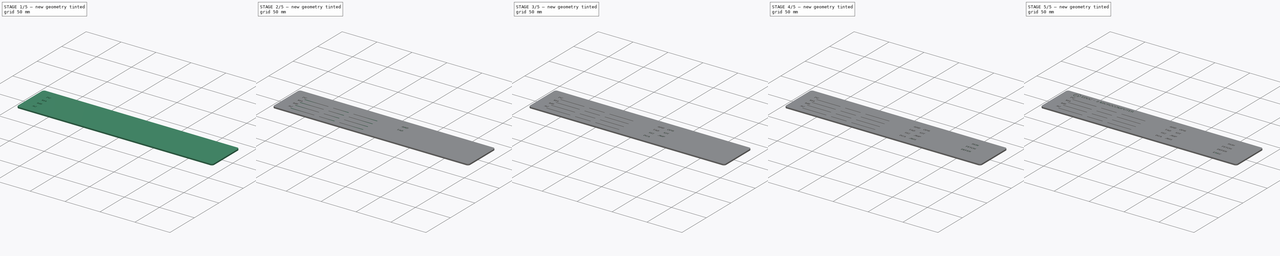
[diagram: build sequence overview — one tinted view per stage of 5, left to right]
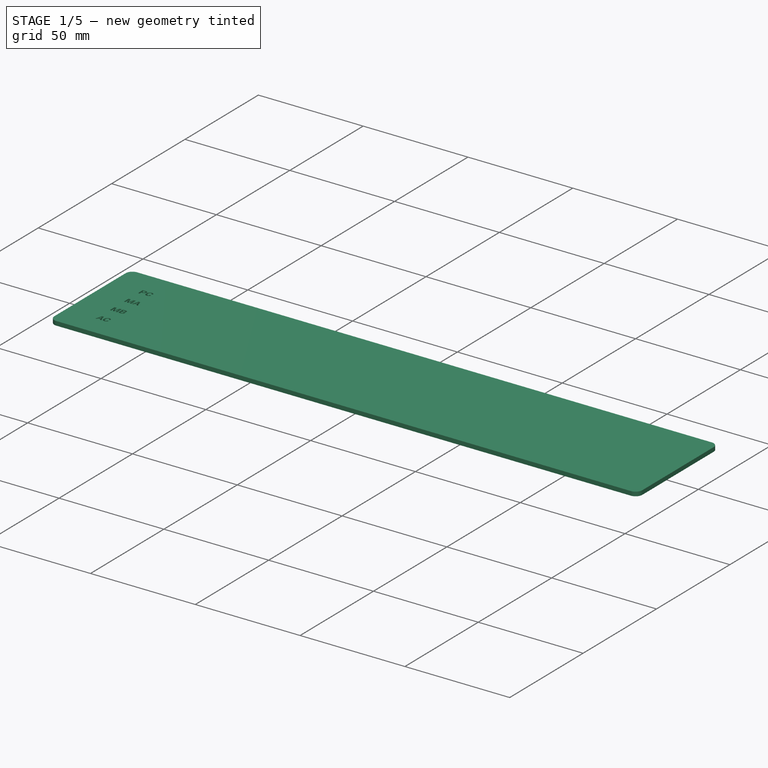
[diagram: stage 1 of 5 — iso view after this stage's code; geometry added in this stage tinted green]
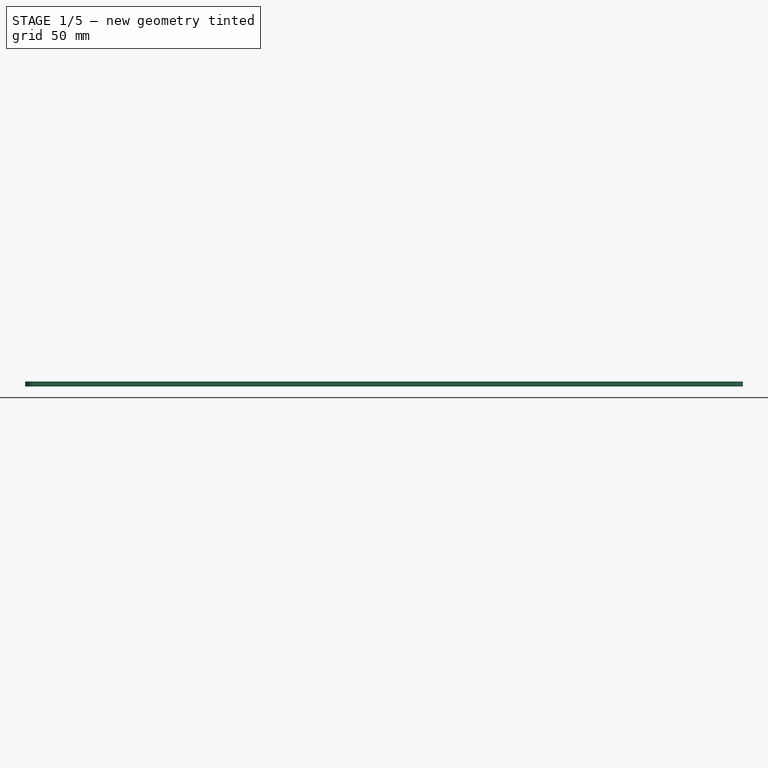
[diagram: stage 1 of 5 — front view after this stage's code; geometry added in this stage tinted green]
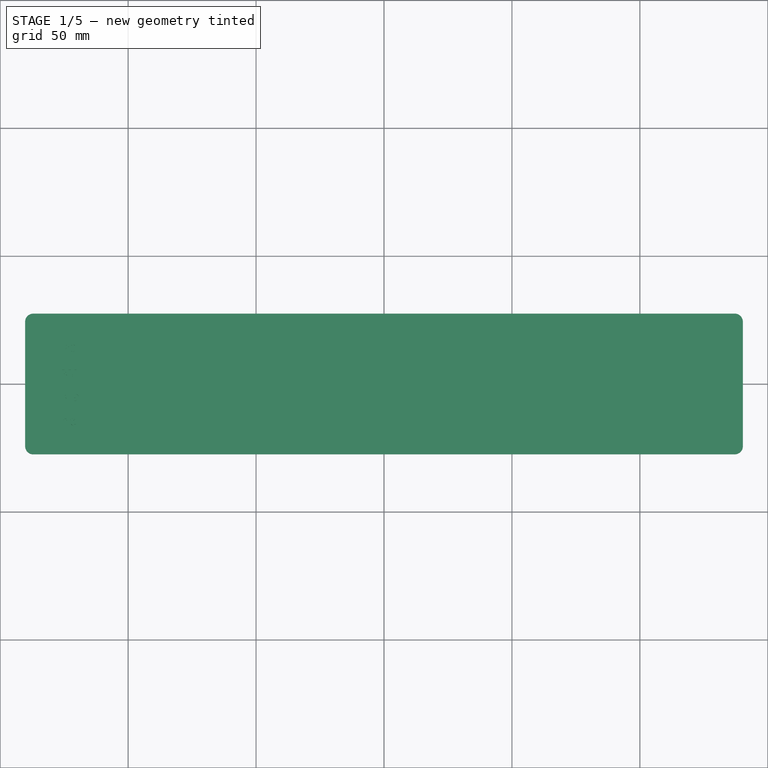
[diagram: stage 1 of 5 — top view after this stage's code; geometry added in this stage tinted green]
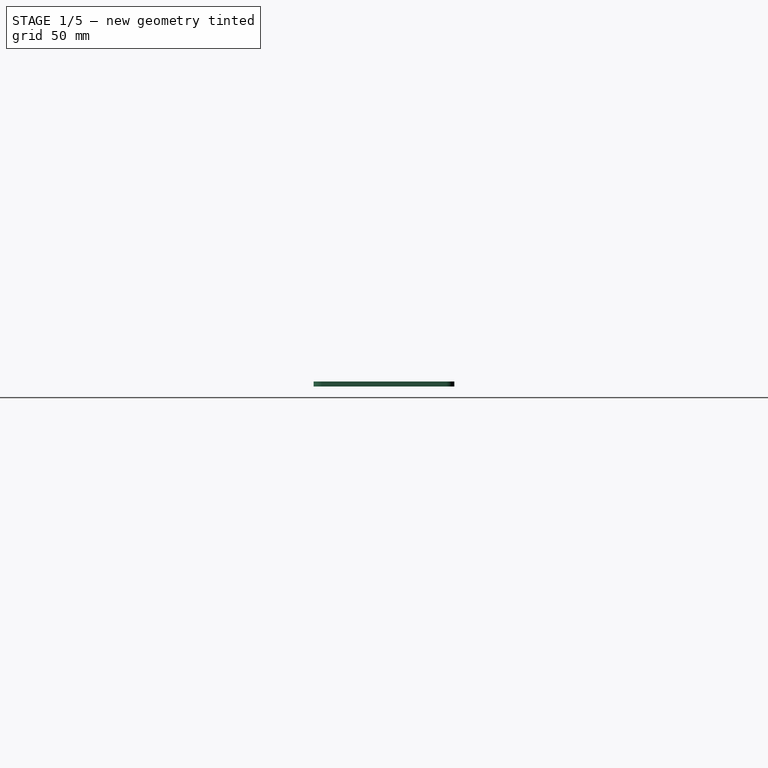
[diagram: stage 1 of 5 — right view after this stage's code; geometry added in this stage tinted green]
FCSTD DOCUMENT  (FreeCAD 0.21R33771 (Git))
Label: perspex window
License: All rights reserved
LicenseURL: http://en.wikipedia.org/wiki/All_rights_reserved
objects: PartDesign::Pocket×21, Part::Part2DObjectPython×19, Sketcher::SketchObject×4, PartDesign::Pad×1, PartDesign::LinearPattern×1, PartDesign::Body×1
note: 69 computed .brp shape members not serialized (recipe doc carries the construction recipe); baked Part::Feature solids carry a one-line shape summary decoded from their .brp

FEATURE [Sketcher::SketchObject] Sketch
  FullyConstrained = true
  MapMode = 5
  Support = -> [XY_Plane]
  sketch-geometry (10):
    g0: ArcOfCircle CenterX=-137.05 CenterY=24.3 CenterZ=0 NormalX=0 NormalY=0 NormalZ=1 AngleXU=0 Radius=3.2 StartAngle=1.5708 EndAngle=3.14159
    g1: LineSegment StartX=-137.05 StartY=27.5 StartZ=0 EndX=137.05 EndY=27.5 EndZ=0
    g2: ArcOfCircle CenterX=137.05 CenterY=24.3 CenterZ=0 NormalX=0 NormalY=0 NormalZ=1 AngleXU=0 Radius=3.2 StartAngle=5e-16 EndAngle=1.5708
    g3: LineSegment StartX=140.25 StartY=24.3 StartZ=0 EndX=140.25 EndY=-24.3 EndZ=0
    g4: ArcOfCircle CenterX=137.05 CenterY=-24.3 CenterZ=0 NormalX=0 NormalY=0 NormalZ=1 AngleXU=0 Radius=3.2 StartAngle=4.71239 EndAngle=6.28319
    g5: LineSegment StartX=137.05 StartY=-27.5 StartZ=0 EndX=-137.05 EndY=-27.5 EndZ=0
    g6: ArcOfCircle CenterX=-137.05 CenterY=-24.3 CenterZ=0 NormalX=0 NormalY=0 NormalZ=1 AngleXU=0 Radius=3.2 StartAngle=3.14159 EndAngle=4.71239
    g7: LineSegment StartX=-140.25 StartY=-24.3 StartZ=0 EndX=-140.25 EndY=24.3 EndZ=0
    g8: GeomPoint X=-140.25 Y=27.5 Z=0
    g9: GeomPoint X=140.25 Y=-27.5 Z=0
  constraints (23):
    c: Tangent(g0,g1) = 1.5708
    c: Tangent(g1,g2) = 1.5708
    c: Tangent(g2,g3) = 1.5708
    c: Tangent(g3,g4) = 1.5708
    c: Tangent(g4,g5) = 1.5708
    c: Tangent(g5,g6) = 1.5708
    c: Tangent(g6,g7) = 1.5708
    c: Tangent(g7,g0) = 1.5708
    c: Horizontal(g1)
    c: Horizontal(g5)
    c: Vertical(g3)
    c: Vertical(g7)
    c: Equal(g0,g2)
    c: Equal(g2,g4)
    c: Equal(g4,g6)
    c: PointOnObject(g8,g1)
    c: PointOnObject(g8,g7)
    c: PointOnObject(g9,g3)
    c: PointOnObject(g9,g5)
    c: Radius(g0) = 3.2
    c: Symmetric(g2,g6,g-1)
    c: DistanceX(g0,g2) = 280.5
    c: DistanceY(g4,g1) = 55
FEATURE [PartDesign::Pad] Pad
  Direction = (0,0,1)
  Length = 2
  Length2 = 10
  Profile = -> Sketch
  ReferenceAxis = -> Sketch [N_Axis]
  Type = 0
FEATURE [Part::Part2DObjectPython] ShapeString  # Draft 2D object (typed FeaturePython)
  FontFile = <userpath>/Downloads/roboto/Roboto-Black.ttf
  MakeFace = true
  Placement = pos=(-126,12,2) rot=(0,0,1;0rad)
  Size = 4
  String = PC
  Tracking = 0
FEATURE [PartDesign::Pocket] Pocket  label="PC"
  BaseFeature = -> Pad
  Direction = (0,0,-1)
  Length = 1
  Length2 = 5
  Profile = -> ShapeString
  ReferenceAxis = -> ShapeString [N_Axis]
  Type = 0
FEATURE [Part::Part2DObjectPython] ShapeString001  # Draft 2D object (typed FeaturePython)
  FontFile = <userpath>/Downloads/roboto/Roboto-Black.ttf
  MakeFace = true
  Placement = pos=(-126,2.4,2) rot=(0,0,1;0rad)
  Size = 4
  String = MA
  Tracking = 0
FEATURE [Part::Part2DObjectPython] ShapeString002  # Draft 2D object (typed FeaturePython)
  FontFile = <userpath>/Downloads/roboto/Roboto-Black.ttf
  MakeFace = true
  Placement = pos=(-126,-7.2,2) rot=(0,0,1;0rad)
  Size = 4
  String = MB
  Tracking = 0
FEATURE [Part::Part2DObjectPython] ShapeString003  # Draft 2D object (typed FeaturePython)
  FontFile = <userpath>/Downloads/roboto/Roboto-Black.ttf
  MakeFace = true
  Placement = pos=(-126,-16.8,2) rot=(0,0,1;0rad)
  Size = 4
  String = AC
  Tracking = 0
FEATURE [PartDesign::Pocket] Pocket001  label="MA"
  BaseFeature = -> Pocket
  Direction = (0,0,-1)
  Length = 1
  Length2 = 5
  Profile = -> ShapeString001
  ReferenceAxis = -> ShapeString001 [N_Axis]
  Type = 0
FEATURE [PartDesign::Pocket] Pocket002  label="MB"
  BaseFeature = -> Pocket001
  Direction = (0,0,-1)
  Length = 1
  Length2 = 5
  Profile = -> ShapeString002
  ReferenceAxis = -> ShapeString002 [N_Axis]
  Type = 0
FEATURE [PartDesign::Pocket] Pocket003  label="AC"
  BaseFeature = -> Pocket002
  Direction = (0,0,-1)
  Length = 1
  Length2 = 5
  Profile = -> ShapeString003
  ReferenceAxis = -> ShapeString003 [N_Axis]
  Type = 0
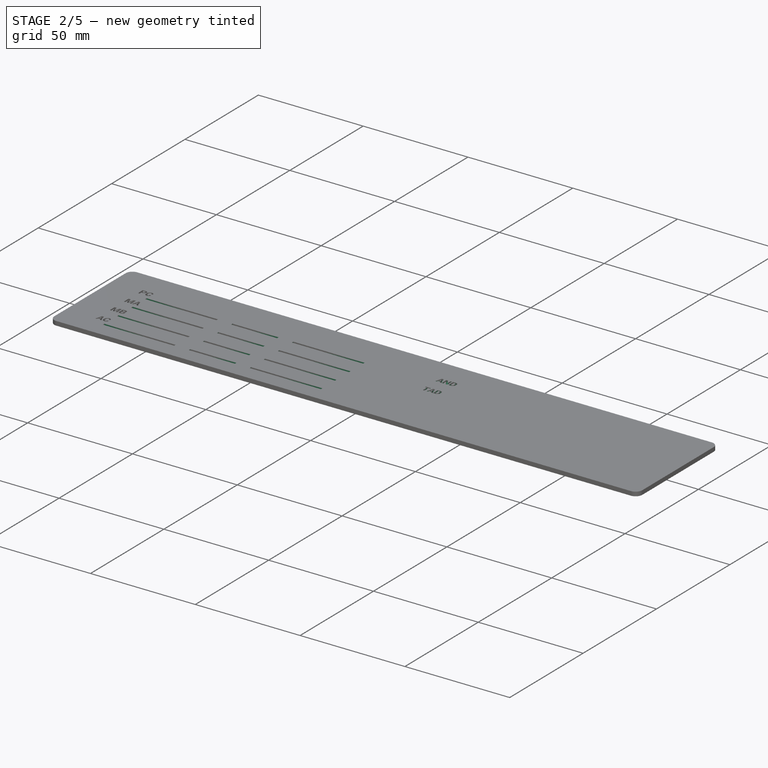
[diagram: stage 2 of 5 — iso view after this stage's code; geometry added in this stage tinted green]
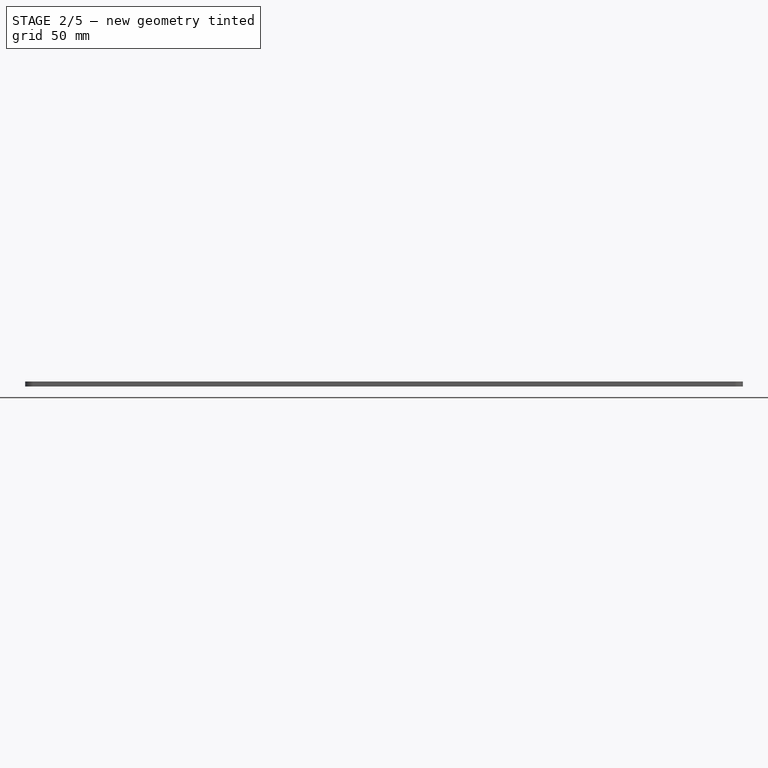
[diagram: stage 2 of 5 — front view after this stage's code; geometry added in this stage tinted green]
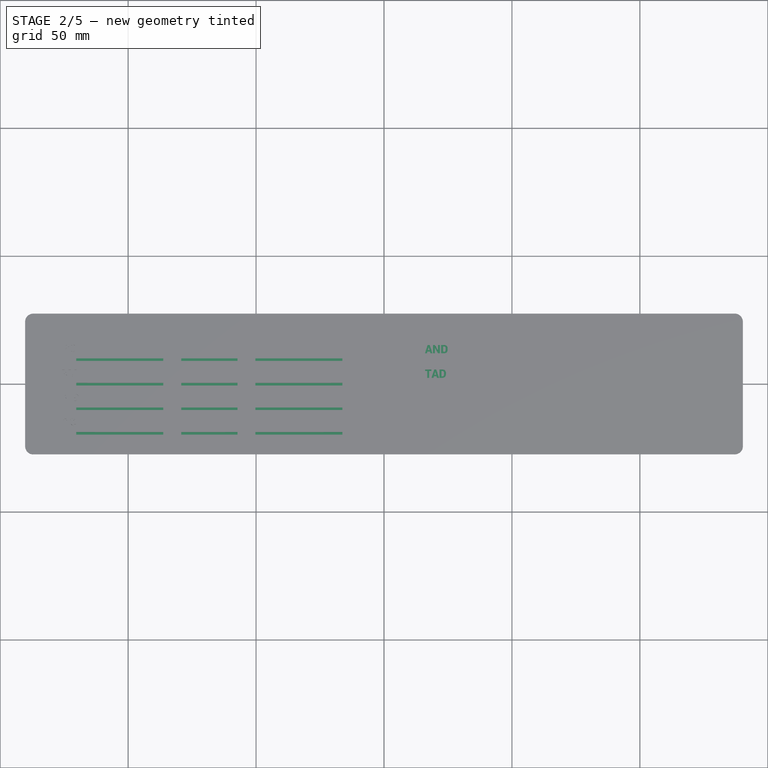
[diagram: stage 2 of 5 — top view after this stage's code; geometry added in this stage tinted green]
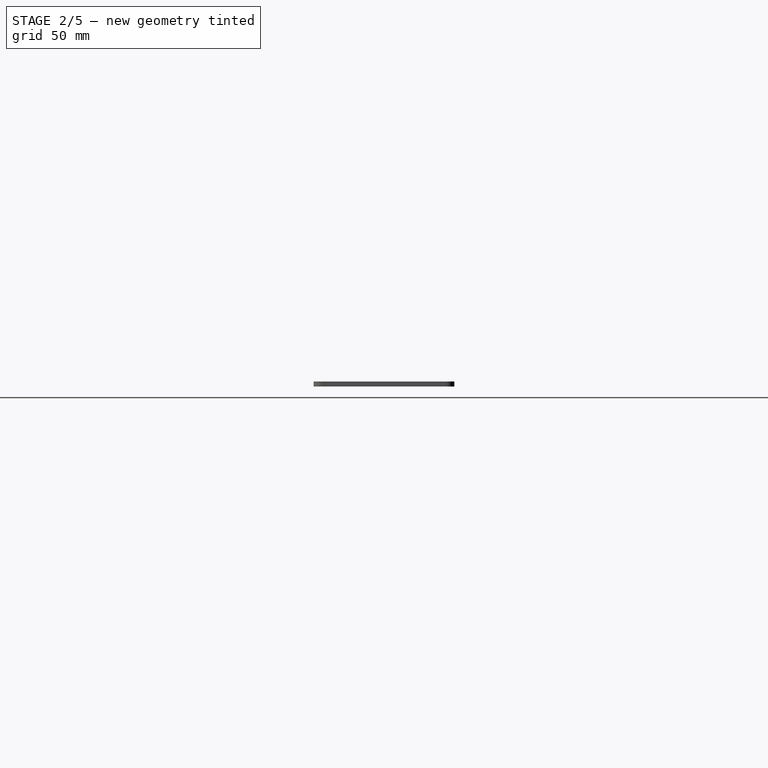
[diagram: stage 2 of 5 — right view after this stage's code; geometry added in this stage tinted green]
FEATURE [Sketcher::SketchObject] Sketch001
  FullyConstrained = true
  MapMode = 5
  Placement = pos=(0,0,2) rot=(0,0,1;0rad)
  Support = -> [Pocket003]
  sketch-geometry (12):
    g0: LineSegment StartX=-120.25 StartY=9 StartZ=0 EndX=-86.25 EndY=9 EndZ=0
    g1: LineSegment StartX=-86.25 StartY=9 StartZ=0 EndX=-86.25 EndY=10 EndZ=0
    g2: LineSegment StartX=-86.25 StartY=10 StartZ=0 EndX=-120.25 EndY=10 EndZ=0
    g3: LineSegment StartX=-120.25 StartY=10 StartZ=0 EndX=-120.25 EndY=9 EndZ=0
    g4: LineSegment StartX=-79.25 StartY=10 StartZ=0 EndX=-57.25 EndY=10 EndZ=0
    g5: LineSegment StartX=-57.25 StartY=10 StartZ=0 EndX=-57.25 EndY=9 EndZ=0
    g6: LineSegment StartX=-57.25 StartY=9 StartZ=0 EndX=-79.25 EndY=9 EndZ=0
    g7: LineSegment StartX=-79.25 StartY=9 StartZ=0 EndX=-79.25 EndY=10 EndZ=0
    g8: LineSegment StartX=-50.25 StartY=10 StartZ=0 EndX=-16.25 EndY=10 EndZ=0
    g9: LineSegment StartX=-16.25 StartY=10 StartZ=0 EndX=-16.25 EndY=9 EndZ=0
    g10: LineSegment StartX=-16.25 StartY=9 StartZ=0 EndX=-50.25 EndY=9 EndZ=0
    g11: LineSegment StartX=-50.25 StartY=9 StartZ=0 EndX=-50.25 EndY=10 EndZ=0
  constraints (36):
    c: Coincident(g0,g1)
    c: Coincident(g1,g2)
    c: Coincident(g2,g3)
    c: Coincident(g3,g0)
    c: Horizontal(g0)
    c: Horizontal(g2)
    c: Vertical(g1)
    c: Vertical(g3)
    c: DistanceY(g-1,g0) = 9
    c: DistanceY(g3,g3) = 1
    c: DistanceX(g2,g2) = 34
    c: DistanceX(g0,g-1) = 120.25
    c: Coincident(g4,g5)
    c: Coincident(g5,g6)
    c: Coincident(g6,g7)
    c: Coincident(g7,g4)
    c: Horizontal(g4)
    c: Horizontal(g6)
    c: Vertical(g5)
    c: Vertical(g7)
    c: Coincident(g8,g9)
    c: Coincident(g9,g10)
    c: Coincident(g10,g11)
    c: Coincident(g11,g8)
    c: Horizontal(g8)
    c: Horizontal(g10)
    c: Vertical(g9)
    c: Vertical(g11)
    c: Horizontal(g0,g6)
    c: Horizontal(g6,g10)
    c: Horizontal(g4,g1)
    c: Horizontal(g1,g8)
    c: Equal(g8,g2)
    c: DistanceX(g0,g9) = 104
    c: DistanceX(g4,g4) = 22
    c: DistanceX(g1,g4) = 7
FEATURE [PartDesign::Pocket] Pocket004  label="LED Underlines"
  BaseFeature = -> Pocket003
  Direction = (0,0,-1)
  Length = 1
  Length2 = 5
  Profile = -> Sketch001
  ReferenceAxis = -> Sketch001 [N_Axis]
  Type = 0
FEATURE [PartDesign::LinearPattern] LinearPattern
  BaseFeature = -> Pocket004
  Direction = -> Sketch001 [V_Axis]
  Length = 28.8
  Occurrences = 4
  Originals = -> [Pocket004]
  Reversed = true
FEATURE [Part::Part2DObjectPython] ShapeString004  label="AND"  # Draft 2D object (typed FeaturePython)
  FontFile = <userpath>/Downloads/roboto/Roboto-Black.ttf
  MakeFace = true
  Placement = pos=(16,12,2) rot=(0,0,1;0rad)
  Size = 4
  String = AND
  Tracking = 0
FEATURE [Part::Part2DObjectPython] ShapeString005  label="TAD"  # Draft 2D object (typed FeaturePython)
  FontFile = <userpath>/Downloads/roboto/Roboto-Black.ttf
  MakeFace = true
  Placement = pos=(16,2.4,2) rot=(0,0,1;0rad)
  Size = 4
  String = TAD
  Tracking = 0
FEATURE [Part::Part2DObjectPython] ShapeString006  label="ISZ"  # Draft 2D object (typed FeaturePython)
  FontFile = <userpath>/Downloads/roboto/Roboto-Black.ttf
  MakeFace = true
  Placement = pos=(17,-7.2,2) rot=(0,0,1;0rad)
  Size = 4
  String = ISZ
  Tracking = 0
FEATURE [Part::Part2DObjectPython] ShapeString007  label="DCA"  # Draft 2D object (typed FeaturePython)
  FontFile = <userpath>/Downloads/roboto/Roboto-Black.ttf
  MakeFace = true
  Placement = pos=(16,-16.8,2) rot=(0,0,1;0rad)
  Size = 4
  String = DCA
  Tracking = 0
FEATURE [Part::Part2DObjectPython] ShapeString008  label="OPR"  # Draft 2D object (typed FeaturePython)
  FontFile = <userpath>/Downloads/roboto/Roboto-Black.ttf
  MakeFace = true
  Placement = pos=(29.8,12,2) rot=(0,0,1;0rad)
  Size = 4
  String = OPR
  Tracking = 0
FEATURE [Part::Part2DObjectPython] ShapeString009  label="IOT"  # Draft 2D object (typed FeaturePython)
  FontFile = <userpath>/Downloads/roboto/Roboto-Black.ttf
  MakeFace = true
  Placement = pos=(31.3,2.4,2) rot=(0,0,1;0rad)
  Size = 4
  String = IOT
  Tracking = 0
FEATURE [Part::Part2DObjectPython] ShapeString010  label="JMP"  # Draft 2D object (typed FeaturePython)
  FontFile = <userpath>/Downloads/roboto/Roboto-Black.ttf
  MakeFace = true
  Placement = pos=(29.8,-7.2,2) rot=(0,0,1;0rad)
  Size = 4
  String = JMP
  Tracking = 0
FEATURE [Part::Part2DObjectPython] ShapeString011  label="JMS"  # Draft 2D object (typed FeaturePython)
  FontFile = <userpath>/Downloads/roboto/Roboto-Black.ttf
  MakeFace = true
  Placement = pos=(29.8,-16.8,2) rot=(0,0,1;0rad)
  Size = 4
  String = JMS
  Tracking = 0
FEATURE [Part::Part2DObjectPython] ShapeString012  label="RUN"  # Draft 2D object (typed FeaturePython)
  FontFile = <userpath>/Downloads/roboto/Roboto-Black.ttf
  MakeFace = true
  Placement = pos=(99.3,12,2) rot=(0,0,1;0rad)
  Size = 4
  String = RUN
  Tracking = 0
FEATURE [Part::Part2DObjectPython] ShapeString013  label="FETCH"  # Draft 2D object (typed FeaturePython)
  FontFile = <userpath>/Downloads/roboto/Roboto-Black.ttf
  MakeFace = true
  Placement = pos=(97.3,2.4,2) rot=(0,0,1;0rad)
  Size = 4
  String = FETCH
  Tracking = 0
FEATURE [Part::Part2DObjectPython] ShapeString014  label="DEFER"  # Draft 2D object (typed FeaturePython)
  FontFile = <userpath>/Downloads/roboto/Roboto-Black.ttf
  MakeFace = true
  Placement = pos=(97.3,-7.2,2) rot=(0,0,1;0rad)
  Size = 4
  String = DEFER
  Tracking = 0
FEATURE [Part::Part2DObjectPython] ShapeString015  label="EXEC"  # Draft 2D object (typed FeaturePython)
  FontFile = <userpath>/Downloads/roboto/Roboto-Black.ttf
  MakeFace = true
  Placement = pos=(98.3,-16.8,2) rot=(0,0,1;0rad)
  Size = 4
  String = EXEC
  Tracking = 0
FEATURE [PartDesign::Pocket] Pocket005  label="AND001"
  BaseFeature = -> LinearPattern
  Direction = (0,0,-1)
  Length = 1
  Length2 = 5
  Profile = -> ShapeString004
  ReferenceAxis = -> ShapeString004 [N_Axis]
  Type = 0
FEATURE [PartDesign::Pocket] Pocket006  label="TAD001"
  BaseFeature = -> Pocket005
  Direction = (0,0,-1)
  Length = 1
  Length2 = 5
  Profile = -> ShapeString005
  ReferenceAxis = -> ShapeString005 [N_Axis]
  Type = 0
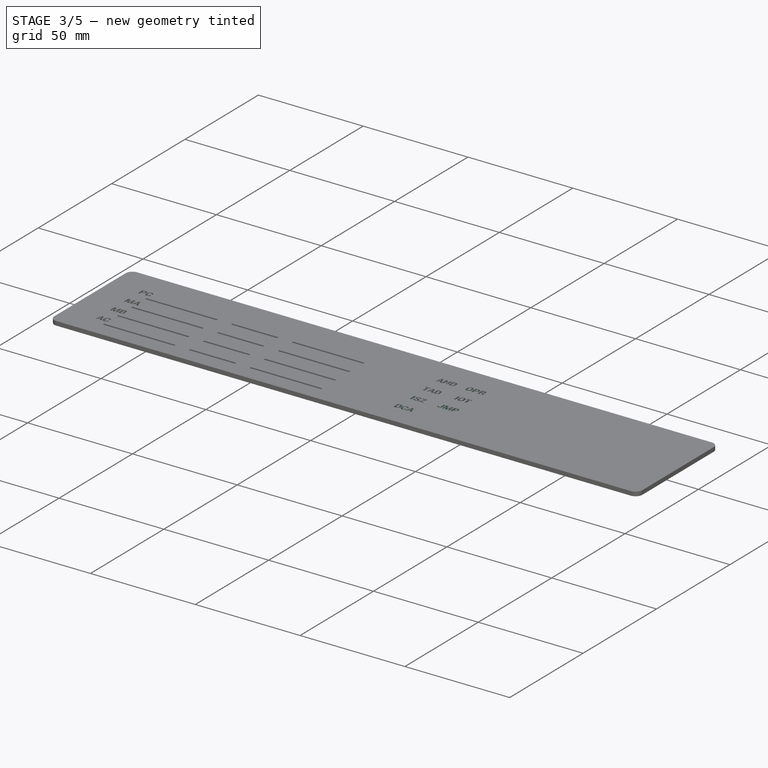
[diagram: stage 3 of 5 — iso view after this stage's code; geometry added in this stage tinted green]
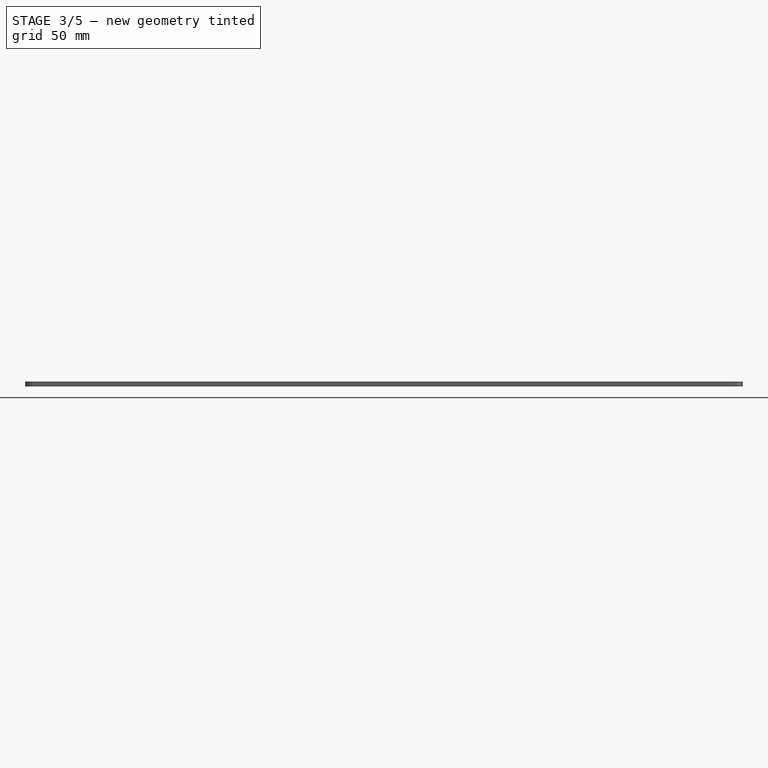
[diagram: stage 3 of 5 — front view after this stage's code; geometry added in this stage tinted green]
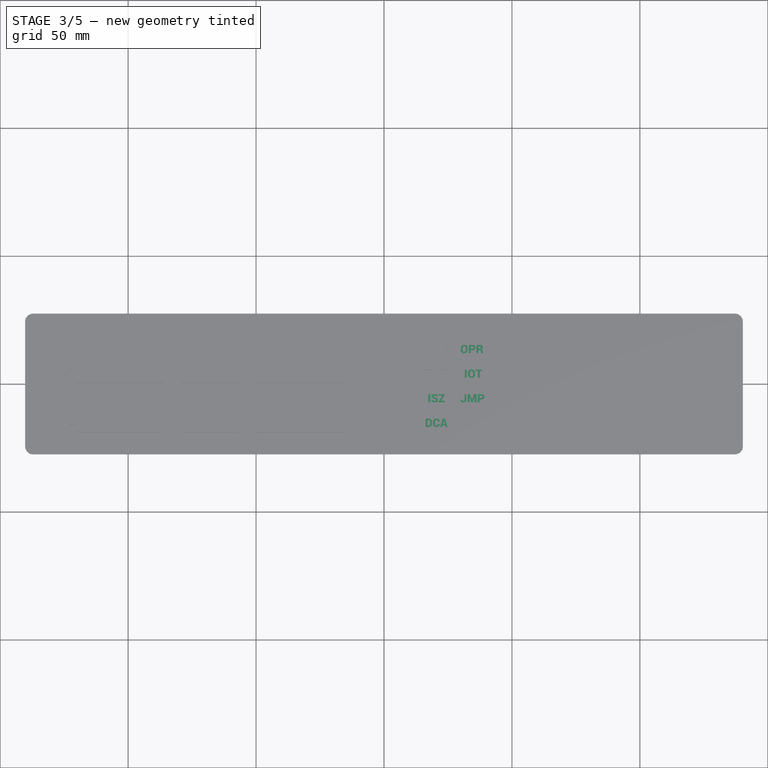
[diagram: stage 3 of 5 — top view after this stage's code; geometry added in this stage tinted green]
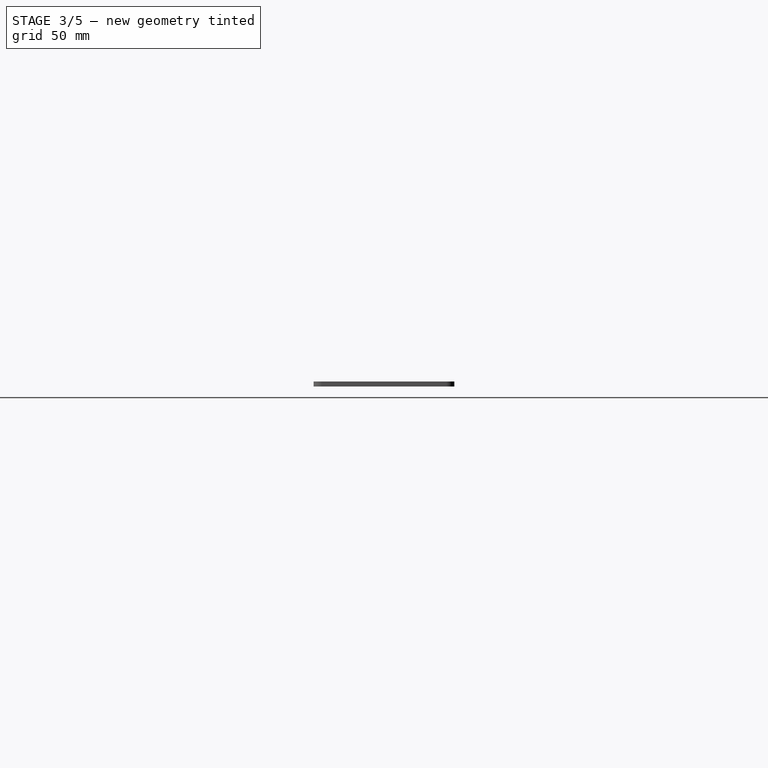
[diagram: stage 3 of 5 — right view after this stage's code; geometry added in this stage tinted green]
FEATURE [PartDesign::Pocket] Pocket007  label="ISZ001"
  BaseFeature = -> Pocket006
  Direction = (0,0,-1)
  Length = 1
  Length2 = 5
  Profile = -> ShapeString006
  ReferenceAxis = -> ShapeString006 [N_Axis]
  Type = 0
FEATURE [PartDesign::Pocket] Pocket008  label="DCA001"
  BaseFeature = -> Pocket007
  Direction = (0,0,-1)
  Length = 1
  Length2 = 5
  Profile = -> ShapeString007
  ReferenceAxis = -> ShapeString007 [N_Axis]
  Type = 0
FEATURE [PartDesign::Pocket] Pocket009  label="OPR001"
  BaseFeature = -> Pocket008
  Direction = (0,0,-1)
  Length = 1
  Length2 = 5
  Profile = -> ShapeString008
  ReferenceAxis = -> ShapeString008 [N_Axis]
  Type = 0
FEATURE [PartDesign::Pocket] Pocket010  label="IOT001"
  BaseFeature = -> Pocket009
  Direction = (0,0,-1)
  Length = 1
  Length2 = 5
  Profile = -> ShapeString009
  ReferenceAxis = -> ShapeString009 [N_Axis]
  Type = 0
FEATURE [PartDesign::Pocket] Pocket011  label="JMP001"
  BaseFeature = -> Pocket010
  Direction = (0,0,-1)
  Length = 1
  Length2 = 5
  Profile = -> ShapeString010
  ReferenceAxis = -> ShapeString010 [N_Axis]
  Type = 0
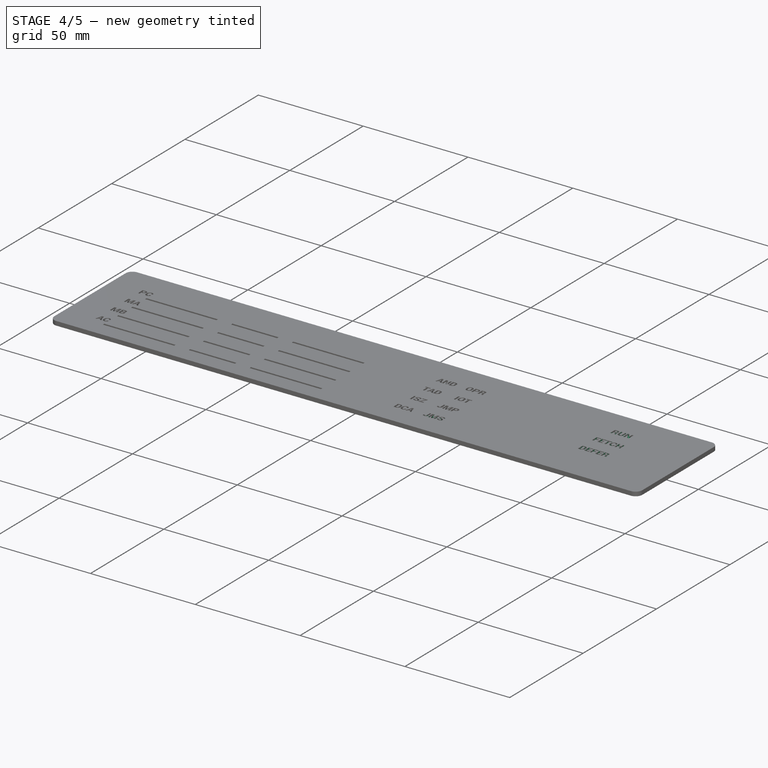
[diagram: stage 4 of 5 — iso view after this stage's code; geometry added in this stage tinted green]
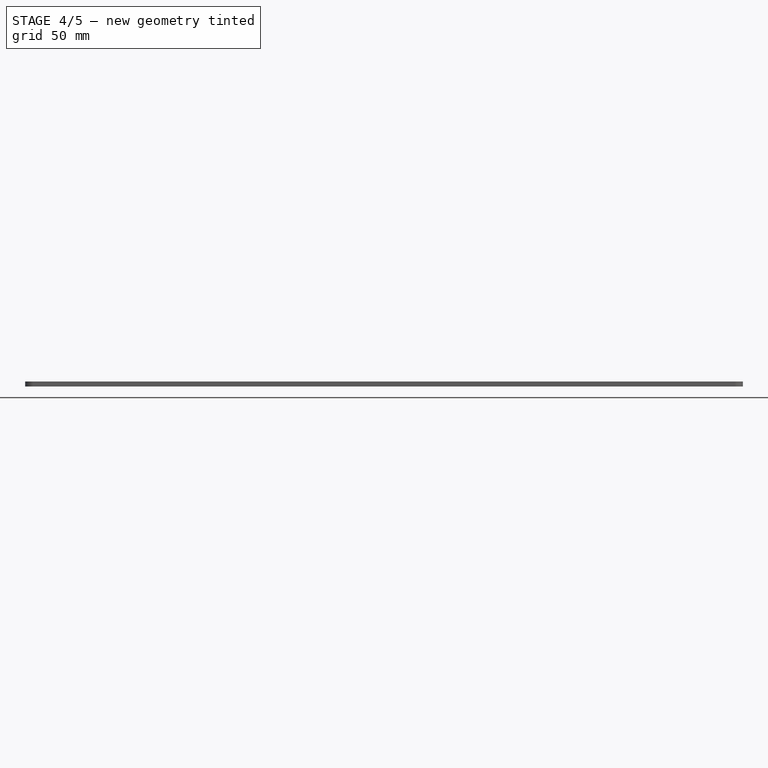
[diagram: stage 4 of 5 — front view after this stage's code; geometry added in this stage tinted green]
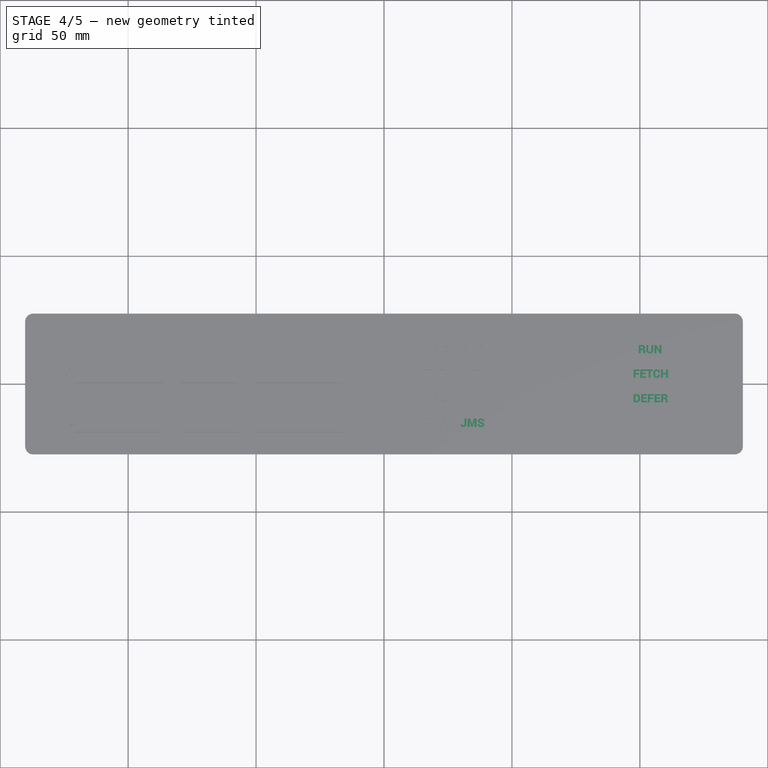
[diagram: stage 4 of 5 — top view after this stage's code; geometry added in this stage tinted green]
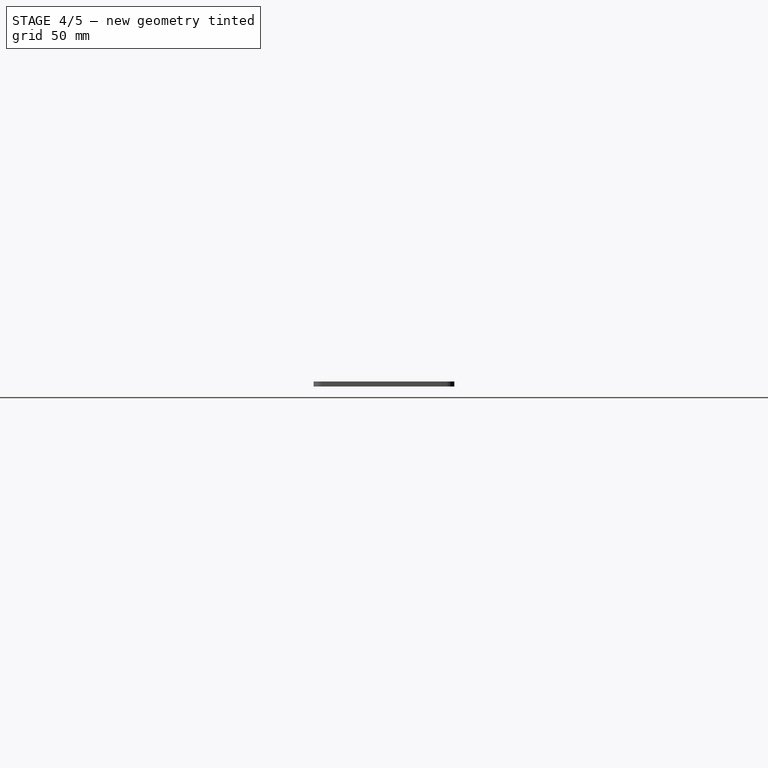
[diagram: stage 4 of 5 — right view after this stage's code; geometry added in this stage tinted green]
FEATURE [PartDesign::Pocket] Pocket012  label="JMS001"
  BaseFeature = -> Pocket011
  Direction = (0,0,-1)
  Length = 1
  Length2 = 5
  Profile = -> ShapeString011
  ReferenceAxis = -> ShapeString011 [N_Axis]
  Type = 0
FEATURE [PartDesign::Pocket] Pocket013  label="RUN001"
  BaseFeature = -> Pocket012
  Direction = (0,0,-1)
  Length = 1
  Length2 = 5
  Profile = -> ShapeString012
  ReferenceAxis = -> ShapeString012 [N_Axis]
  Type = 0
FEATURE [PartDesign::Pocket] Pocket014  label="FETCH001"
  BaseFeature = -> Pocket013
  Direction = (0,0,-1)
  Length = 1
  Length2 = 5
  Profile = -> ShapeString013
  ReferenceAxis = -> ShapeString013 [N_Axis]
  Type = 0
FEATURE [PartDesign::Pocket] Pocket015  label="DEFER001"
  BaseFeature = -> Pocket014
  Direction = (0,0,-1)
  Length = 1
  Length2 = 5
  Profile = -> ShapeString014
  ReferenceAxis = -> ShapeString014 [N_Axis]
  Type = 0
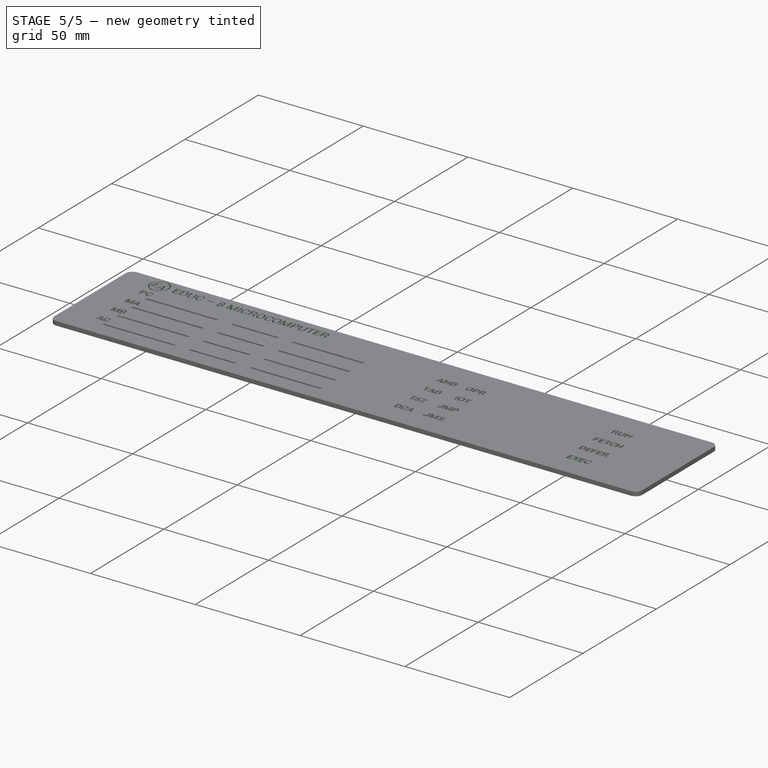
[diagram: stage 5 of 5 — iso view after this stage's code; geometry added in this stage tinted green]
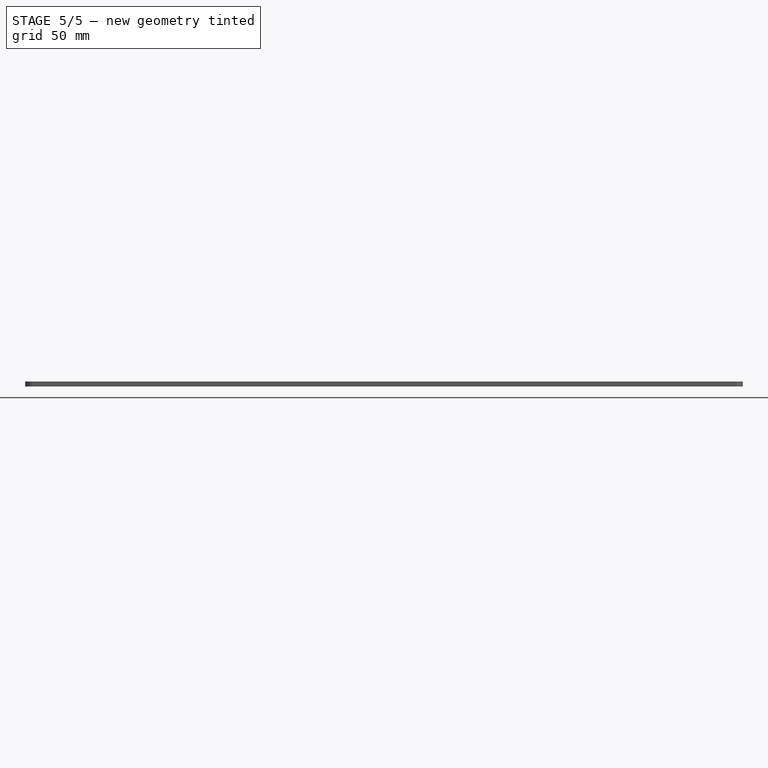
[diagram: stage 5 of 5 — front view after this stage's code; geometry added in this stage tinted green]
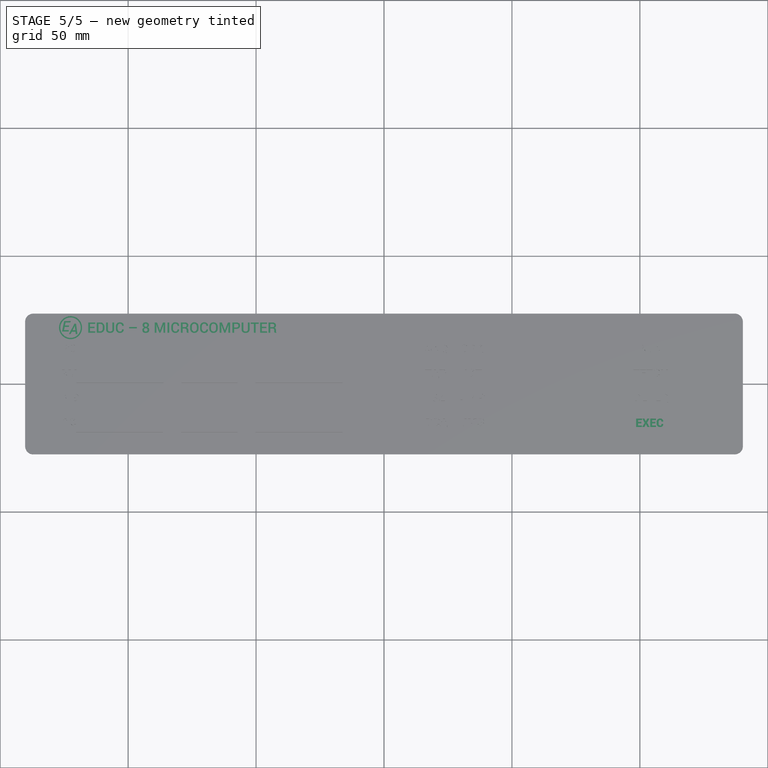
[diagram: stage 5 of 5 — top view after this stage's code; geometry added in this stage tinted green]
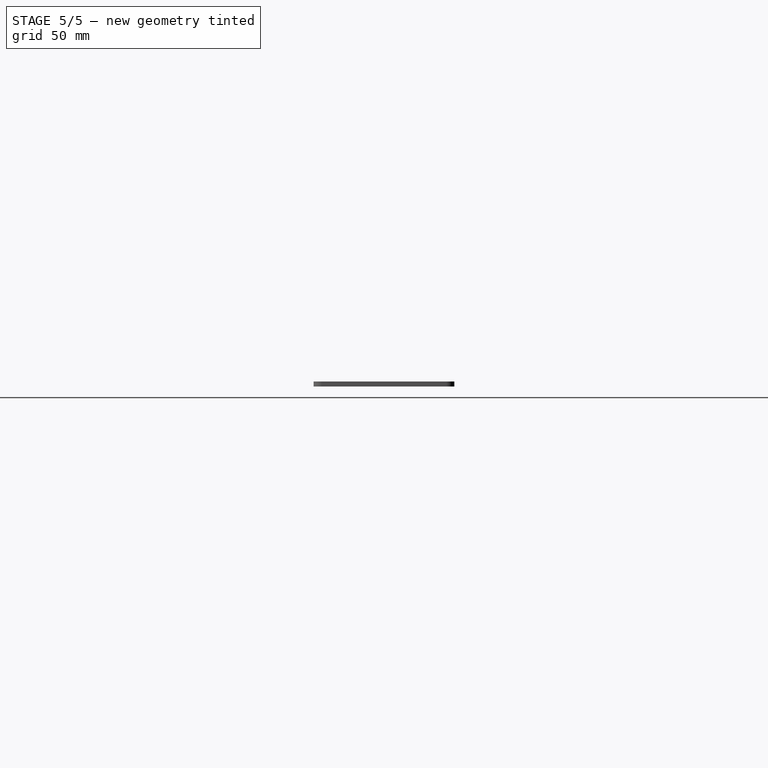
[diagram: stage 5 of 5 — right view after this stage's code; geometry added in this stage tinted green]
FEATURE [PartDesign::Pocket] Pocket016  label="EXEC001"
  BaseFeature = -> Pocket015
  Direction = (0,0,-1)
  Length = 1
  Length2 = 5
  Profile = -> ShapeString015
  ReferenceAxis = -> ShapeString015 [N_Axis]
  Type = 0
FEATURE [Part::Part2DObjectPython] ShapeString016  # Draft 2D object (typed FeaturePython)
  FontFile = <userpath>/Downloads/roboto/Roboto-Medium.ttf
  MakeFace = true
  Placement = pos=(-116,20,2) rot=(0,0,1;0rad)
  Size = 5
  String = EDUC – 8 MICROCOMPUTER
  Tracking = 0
FEATURE [Sketcher::SketchObject] Sketch002
  FullyConstrained = true
  MapMode = 5
  Placement = pos=(0,0,2) rot=(0,0,1;0rad)
  Support = -> [Pocket016]
  sketch-geometry (2):
    g0: Circle CenterX=-122.5 CenterY=22 CenterZ=0 NormalX=0 NormalY=0 NormalZ=1 AngleXU=0 Radius=4.5
    g1: Circle CenterX=-122.5 CenterY=22 CenterZ=0 NormalX=0 NormalY=0 NormalZ=1 AngleXU=0 Radius=4
  constraints (5):
    c: Coincident(g1,g0)
    c: Diameter(g0) = 9
    c: DistanceY(g-1,g0) = 22
    c: DistanceX(g0,g-1) = 122.5
    c: Diameter(g1) = 8
FEATURE [PartDesign::Pocket] Pocket017
  BaseFeature = -> Pocket016
  Direction = (0,0,-1)
  Length = 1
  Length2 = 5
  Profile = -> Sketch002
  ReferenceAxis = -> Sketch002 [N_Axis]
  Type = 0
FEATURE [Part::Part2DObjectPython] ShapeString017  # Draft 2D object (typed FeaturePython)
  FontFile = <userpath>/Downloads/roboto/Roboto-MediumItalic.ttf
  MakeFace = true
  Placement = pos=(-126,20.5,2) rot=(0,0,1;0rad)
  Size = 5
  String = E
  Tracking = 0
FEATURE [Part::Part2DObjectPython] ShapeString018  # Draft 2D object (typed FeaturePython)
  FontFile = <userpath>/Downloads/roboto/Roboto-MediumItalic.ttf
  MakeFace = true
  Placement = pos=(-123,19.47,2) rot=(0,0,1;0rad)
  Size = 5
  String = A
  Tracking = 0
FEATURE [PartDesign::Pocket] Pocket018
  BaseFeature = -> Pocket017
  Direction = (0,0,-1)
  Length = 1
  Length2 = 5
  Profile = -> ShapeString016
  ReferenceAxis = -> ShapeString016 [N_Axis]
  Type = 0
FEATURE [PartDesign::Pocket] Pocket019
  BaseFeature = -> Pocket018
  Direction = (0,0,-1)
  Length = 1
  Length2 = 5
  Profile = -> ShapeString017
  ReferenceAxis = -> ShapeString017 [N_Axis]
  Type = 0
FEATURE [PartDesign::Pocket] Pocket020
  BaseFeature = -> Pocket019
  Direction = (0,0,-1)
  Length = 1
  Length2 = 5
  Profile = -> ShapeString018
  ReferenceAxis = -> ShapeString018 [N_Axis]
  Type = 0
FEATURE [Sketcher::SketchObject] Sketch003
  ExternalGeometry = -> [Pocket020]
  FullyConstrained = true
  MapMode = 5
  Placement = pos=(0,0,2) rot=(0,0,1;0rad)
  Support = -> [Pocket020]
FEATURE [PartDesign::Body] Body
  Group = -> [Sketch,Pad,ShapeString,Pocket,ShapeString001,ShapeString002,ShapeString003,Pocket001,Pocket002,Pocket003,Sketch001,Pocket004,LinearPattern,ShapeString004,ShapeString005,ShapeString006,ShapeString007,ShapeString008,ShapeString009,ShapeString010,ShapeString011,ShapeString012,ShapeString013,ShapeString014,ShapeString015,Pocket005,Pocket006,Pocket007,Pocket008,Pocket009,Pocket010,Pocket011,Pocket012,+13 more]
  Origin = -> Origin
  Tip = -> Pocket020
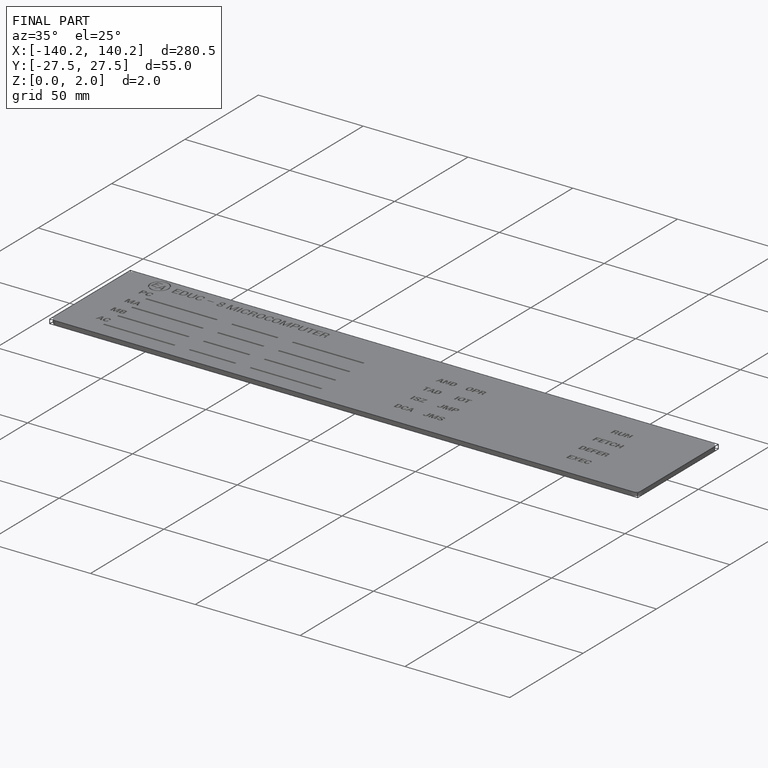
[diagram: finished part — iso view with bounding-box wireframe]
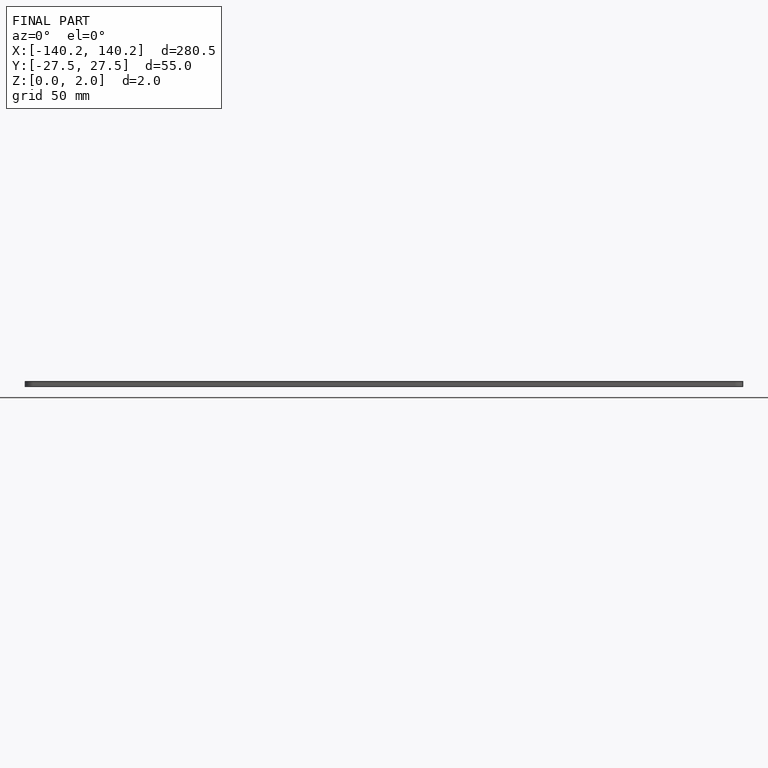
[diagram: finished part — front view with bounding-box wireframe]
